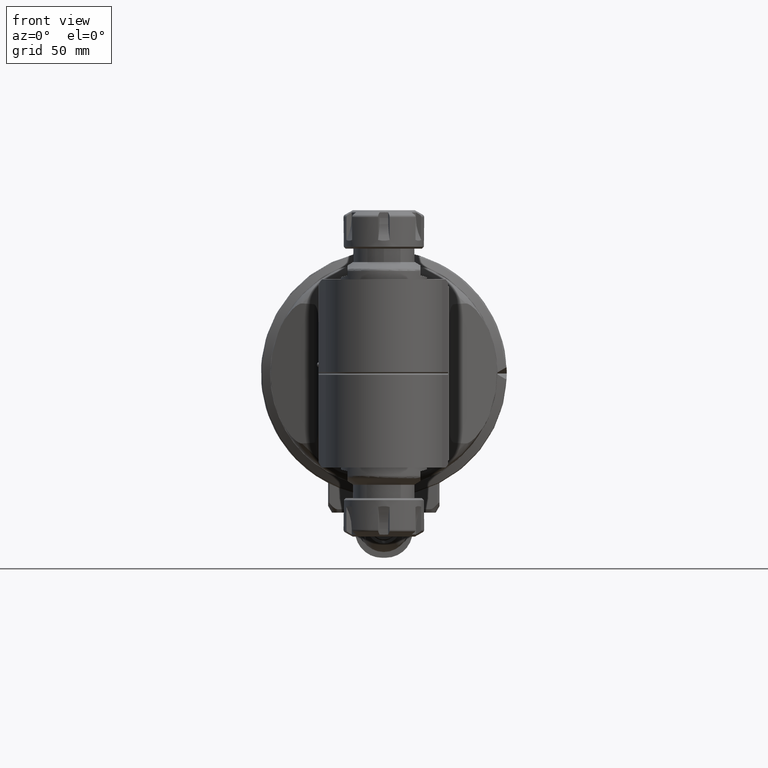
[diagram: clean part render]
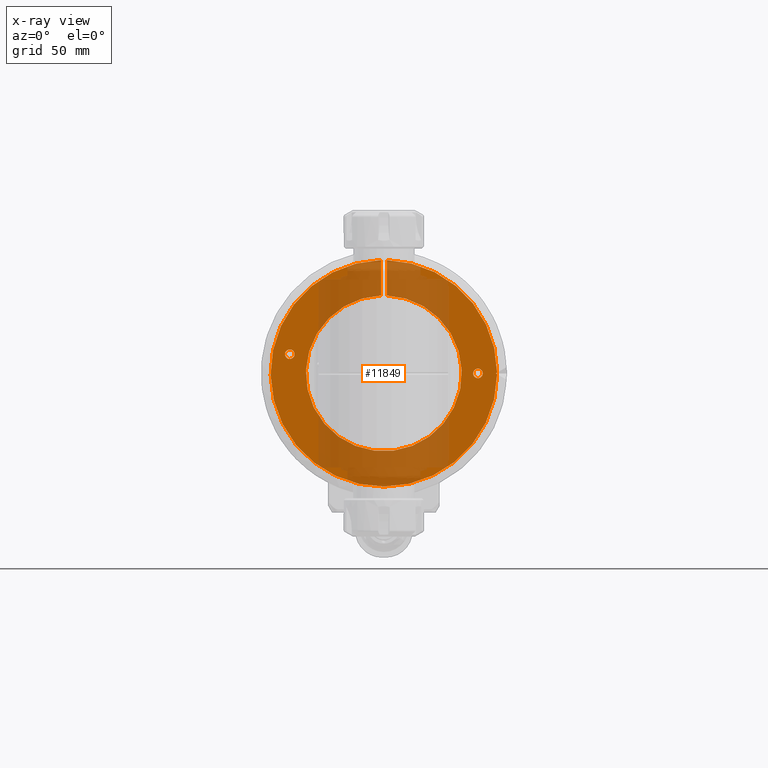
[diagram: x-ray — body ghosted, one internal face saturated and labeled with its STEP entity id]
A machine part, front view, then the same camera in x-ray: the body is ghosted and one INTERNAL B-rep face — a face not visible from any outside direction — is saturated and labeled: STEP entity #11849.
In plain terms, the highlighted planar face has unit normal (0, -1, 0).
Its self-contained STEP definition (entity closure, byte-faithful):
#883=FACE_BOUND('',#2807,.T.);
#884=FACE_BOUND('',#2808,.T.);
#1344=CIRCLE('',#13080,2.32283464566929);
#1361=CIRCLE('',#13122,1.59753347516496);
#1362=CIRCLE('',#13124,2.32283464566929);
#1363=CIRCLE('',#13125,0.0984251968503937);
#1364=CIRCLE('',#13126,0.0984251968503937);
#2025=FACE_OUTER_BOUND('',#2806,.T.);
#2806=EDGE_LOOP('',(#9930,#9931,#9932,#9933,#9934,#9935,#9936));
#2807=EDGE_LOOP('',(#9937));
#2808=EDGE_LOOP('',(#9938));
#3554=LINE('',#22346,#4307);
#3555=LINE('',#22387,#4308);
#3557=LINE('',#22403,#4310);
#3558=LINE('',#22430,#4311);
#4307=VECTOR('',#15898,0.725642250193701);
#4308=VECTOR('',#15909,0.393700787401575);
#4310=VECTOR('',#15913,0.393700787401575);
#4311=VECTOR('',#15924,0.725642250193701);
#5371=VERTEX_POINT('',#22343);
#5372=VERTEX_POINT('',#22345);
#5377=VERTEX_POINT('',#22382);
#5378=VERTEX_POINT('',#22386);
#5379=VERTEX_POINT('',#22390);
#5381=VERTEX_POINT('',#22405);
#5383=VERTEX_POINT('',#22429);
#5407=VERTEX_POINT('',#22630);
#5408=VERTEX_POINT('',#22632);
#6930=EDGE_CURVE('',#5372,#5371,#3554,.T.);
#6938=EDGE_CURVE('',#5378,#5377,#3555,.T.);
#6942=EDGE_CURVE('',#5379,#5378,#3557,.T.);
#6943=EDGE_CURVE('',#5381,#5379,#1344,.T.);
#6947=EDGE_CURVE('',#5383,#5381,#3558,.T.);
#6988=EDGE_CURVE('',#5371,#5383,#1361,.T.);
#6989=EDGE_CURVE('',#5377,#5372,#1362,.T.);
#6990=EDGE_CURVE('',#5407,#5407,#1363,.T.);
#6991=EDGE_CURVE('',#5408,#5408,#1364,.T.);
#9930=ORIENTED_EDGE('',*,*,#6989,.T.);
#9931=ORIENTED_EDGE('',*,*,#6930,.T.);
#9932=ORIENTED_EDGE('',*,*,#6988,.T.);
#9933=ORIENTED_EDGE('',*,*,#6947,.T.);
#9934=ORIENTED_EDGE('',*,*,#6943,.T.);
#9935=ORIENTED_EDGE('',*,*,#6942,.T.);
#9936=ORIENTED_EDGE('',*,*,#6938,.T.);
#9937=ORIENTED_EDGE('',*,*,#6990,.T.);
#9938=ORIENTED_EDGE('',*,*,#6991,.T.);
#11260=PLANE('',#13123);
#11849=ADVANCED_FACE('',(#2025,#883,#884),#11260,.T.);
#13080=AXIS2_PLACEMENT_3D('',#22406,#15916,#15917);
#13122=AXIS2_PLACEMENT_3D('',#22627,#16012,#16013);
#13123=AXIS2_PLACEMENT_3D('',#22628,#16014,#16015);
#13124=AXIS2_PLACEMENT_3D('',#22629,#16016,#16017);
#13125=AXIS2_PLACEMENT_3D('',#22631,#16018,#16019);
#13126=AXIS2_PLACEMENT_3D('',#22633,#16020,#16021);
#15898=DIRECTION('',(0.,0.,-1.));
#15909=DIRECTION('',(0.75592894601843,0.,0.654653670708006));
#15913=DIRECTION('',(-0.75592894601843,0.,0.654653670708006));
#15916=DIRECTION('center_axis',(0.,-1.,0.));
#15917=DIRECTION('ref_axis',(0.,0.,-1.));
#15924=DIRECTION('',(0.,0.,1.));
#16012=DIRECTION('center_axis',(0.,1.,0.));
#16013=DIRECTION('ref_axis',(0.,0.,-1.));
#16014=DIRECTION('center_axis',(0.,-1.,0.));
#16015=DIRECTION('ref_axis',(0.,0.,1.));
#16016=DIRECTION('center_axis',(0.,-1.,0.));
#16017=DIRECTION('ref_axis',(0.999973237557455,0.,0.00731602138204067));
#16018=DIRECTION('center_axis',(0.,1.,0.));
#16019=DIRECTION('ref_axis',(-1.,0.,0.));
#16020=DIRECTION('center_axis',(0.,1.,0.));
#16021=DIRECTION('ref_axis',(-1.,0.,0.));
#22343=CARTESIAN_POINT('',(0.0590551120533071,7.45976625470079E-16,1.59644157362953));
#22345=CARTESIAN_POINT('',(0.0590551120533071,0.,2.32208382382323));
#22346=CARTESIAN_POINT('',(0.0590551120533071,0.,2.32208382382323));
#22382=CARTESIAN_POINT('',(2.32277248094054,2.90666032554855E-15,0.0169939079346408));
#22386=CARTESIAN_POINT('',(2.30314960629921,0.,-1.91065123964409E-15));
#22387=CARTESIAN_POINT('',(2.51357116314853,0.,0.182230413735374));
#22390=CARTESIAN_POINT('',(2.32277248094054,2.84481648883472E-15,-0.0169939079347501));
#22403=CARTESIAN_POINT('',(1.56965631400094,0.,0.635223824635749));
#22405=CARTESIAN_POINT('',(-0.0590551120533071,0.,2.32208382382323));
#22406=CARTESIAN_POINT('Origin',(0.,-8.39223703653543E-16,0.));
#22429=CARTESIAN_POINT('',(-0.0590551120533071,2.7974123455122E-15,1.59644157362953));
#22430=CARTESIAN_POINT('',(-0.0590551120533071,7.45976625470079E-16,1.59644157362953));
#22627=CARTESIAN_POINT('Origin',(0.,2.7974123455122E-15,0.));
#22628=CARTESIAN_POINT('Origin',(0.,0.,2.38065366696693));
#22629=CARTESIAN_POINT('Origin',(0.,-8.39223703653543E-16,0.));
#22630=CARTESIAN_POINT('',(2.02755905511811,0.,0.));
#22631=CARTESIAN_POINT('Origin',(1.92913385826772,0.,0.));
#22632=CARTESIAN_POINT('',(-1.83070866141732,0.,0.393700787401575));
#22633=CARTESIAN_POINT('Origin',(-1.92913385826772,0.,0.393700787401575));